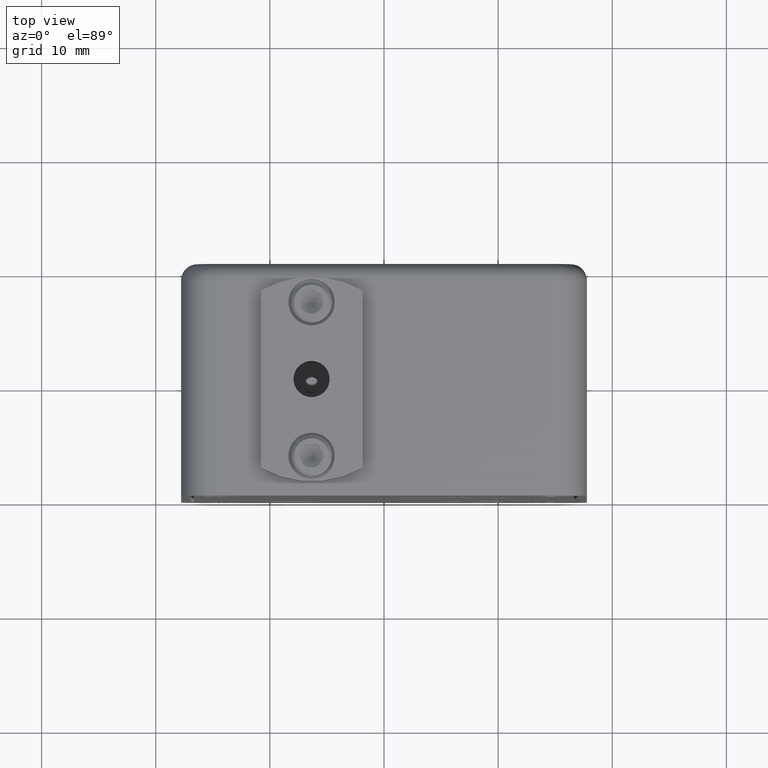
[diagram: clean part render]
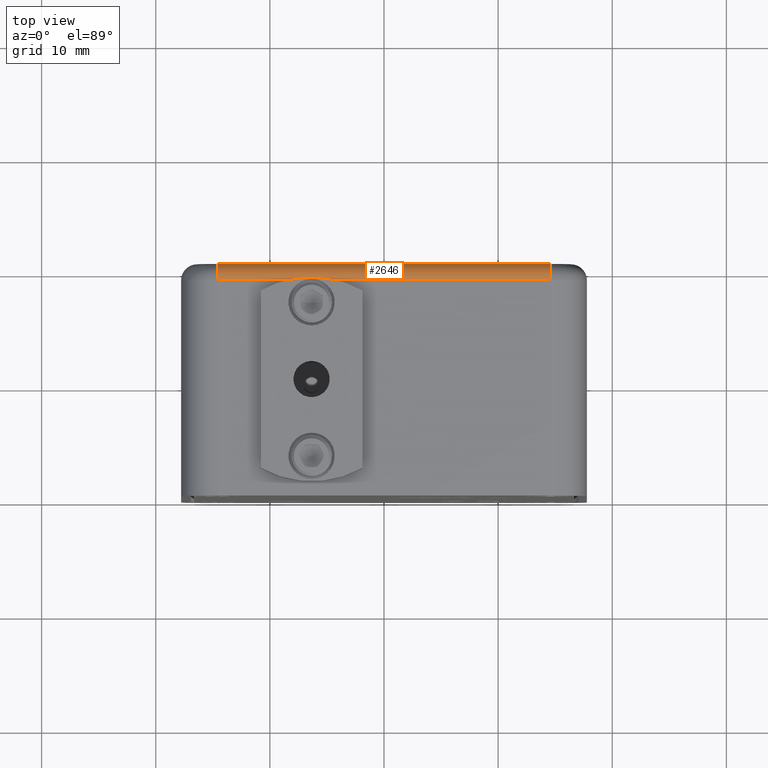
[diagram: same view with one face highlighted and labeled with its STEP entity id]
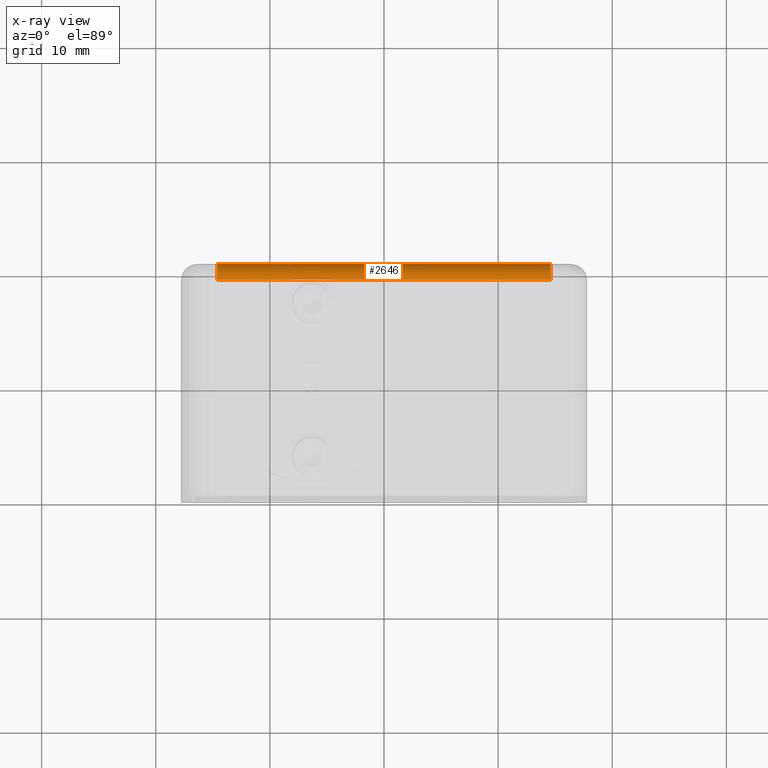
[diagram: x-ray of the same camera — body ghosted, the highlighted face saturated]
A machine part, top view. The second image highlights one B-rep face of the part: STEP entity #2646.
The next image is the same camera in x-ray: the body ghosted, the highlighted face saturated — about 0% of this face is hidden behind the body in this view.
In plain terms, the highlighted cylindrical surface (edge-blend (fillet) strip) has radius 1.397 mm, axis along (-1, 0, 0).
Its self-contained STEP definition (entity closure, byte-faithful):
#915 = CARTESIAN_POINT ( 'NONE',  ( -0.5749999999999998400, 0.8000000000000000400, -0.05500000000000000000 ) ) ;
#2646 = ADVANCED_FACE ( 'NONE', ( #56593 ), #56627, .T. ) ;
#5742 = EDGE_CURVE ( 'NONE', #8551, #72644, #49843, .T. ) ;
#8551 = VERTEX_POINT ( 'NONE', #915 ) ;
#31782 = AXIS2_PLACEMENT_3D ( 'NONE', #37063, #37064, #37065 ) ;
#31791 = AXIS2_PLACEMENT_3D ( 'NONE', #37100, #37101, #37102 ) ;
#36679 = ORIENTED_EDGE ( 'NONE', *, *, #91181, .T. ) ;
#36681 = ORIENTED_EDGE ( 'NONE', *, *, #91189, .F. ) ;
#36683 = ORIENTED_EDGE ( 'NONE', *, *, #91195, .F. ) ;
#36684 = ORIENTED_EDGE ( 'NONE', *, *, #5742, .F. ) ;
#37063 = CARTESIAN_POINT ( 'NONE',  ( -0.5749999999999998400, 0.7450000000000001100, -0.05500000000000000000 ) ) ;
#37064 = DIRECTION ( 'NONE',  ( 1.000000000000000000, 0.0000000000000000000, 0.0000000000000000000 ) ) ;
#37065 = DIRECTION ( 'NONE',  ( 0.0000000000000000000, 0.0000000000000000000, -1.000000000000000000 ) ) ;
#37080 = CARTESIAN_POINT ( 'NONE',  ( -0.5749999999999998400, 0.7450000000000001100, -6.770001210585055700E-034 ) ) ;
#37085 = DIRECTION ( 'NONE',  ( -1.000000000000000000, -0.0000000000000000000, 5.416000968468042500E-033 ) ) ;
#37100 = CARTESIAN_POINT ( 'NONE',  ( 0.5749999999999999600, 0.7450000000000001100, -0.05500000000000000000 ) ) ;
#37101 = DIRECTION ( 'NONE',  ( 1.000000000000000000, 0.0000000000000000000, -1.241749088029210600E-015 ) ) ;
#37102 = DIRECTION ( 'NONE',  ( -1.241749088029210600E-015, 0.0000000000000000000, -1.000000000000000000 ) ) ;
#37924 = CIRCLE ( 'NONE', #31782, 0.05500000000000000000 ) ;
#37939 = LINE ( 'NONE', #37080, #37943 ) ;
#37943 = VECTOR ( 'NONE', #37085, 39.37007874015748100 ) ;
#37949 = CIRCLE ( 'NONE', #31791, 0.05500000000000000000 ) ;
#43972 = CARTESIAN_POINT ( 'NONE',  ( -0.5749999999999998400, 0.7450000000000001100, -6.770001210585055700E-034 ) ) ;
#43974 = CARTESIAN_POINT ( 'NONE',  ( 0.5750000000000000700, 0.7450000000000001100, -6.905401234796753500E-033 ) ) ;
#44017 = CARTESIAN_POINT ( 'NONE',  ( 0.5749999999999999600, 0.8000000000000000400, -0.05500000000000000000 ) ) ;
#49843 = LINE ( 'NONE', #74349, #49852 ) ;
#49852 = VECTOR ( 'NONE', #74351, 39.37007874015748100 ) ;
#53764 = DIRECTION ( 'NONE',  ( 0.0000000000000000000, 0.0000000000000000000, 1.000000000000000000 ) ) ;
#53765 = CARTESIAN_POINT ( 'NONE',  ( -0.6999999999999999600, 0.7450000000000001100, -0.05500000000000000000 ) ) ;
#53766 = DIRECTION ( 'NONE',  ( -1.000000000000000000, 0.0000000000000000000, 5.416000968468042500E-033 ) ) ;
#56593 = FACE_OUTER_BOUND ( 'NONE', #83617, .T. ) ;
#56627 = CYLINDRICAL_SURFACE ( 'NONE', #87077, 0.05500000000000000000 ) ;
#62123 = VERTEX_POINT ( 'NONE', #43972 ) ;
#72578 = VERTEX_POINT ( 'NONE', #43974 ) ;
#72644 = VERTEX_POINT ( 'NONE', #44017 ) ;
#74349 = CARTESIAN_POINT ( 'NONE',  ( 0.5750000000000000700, 0.8000000000000000400, -0.05500000000000000000 ) ) ;
#74351 = DIRECTION ( 'NONE',  ( 1.000000000000000000, 0.0000000000000000000, -5.416000968468042500E-033 ) ) ;
#83617 = EDGE_LOOP ( 'NONE', ( #36679, #36681, #36683, #36684 ) ) ;
#87077 = AXIS2_PLACEMENT_3D ( 'NONE', #53765, #53766, #53764 ) ;
#91181 = EDGE_CURVE ( 'NONE', #8551, #62123, #37924, .T. ) ;
#91189 = EDGE_CURVE ( 'NONE', #72578, #62123, #37939, .T. ) ;
#91195 = EDGE_CURVE ( 'NONE', #72644, #72578, #37949, .T. ) ;